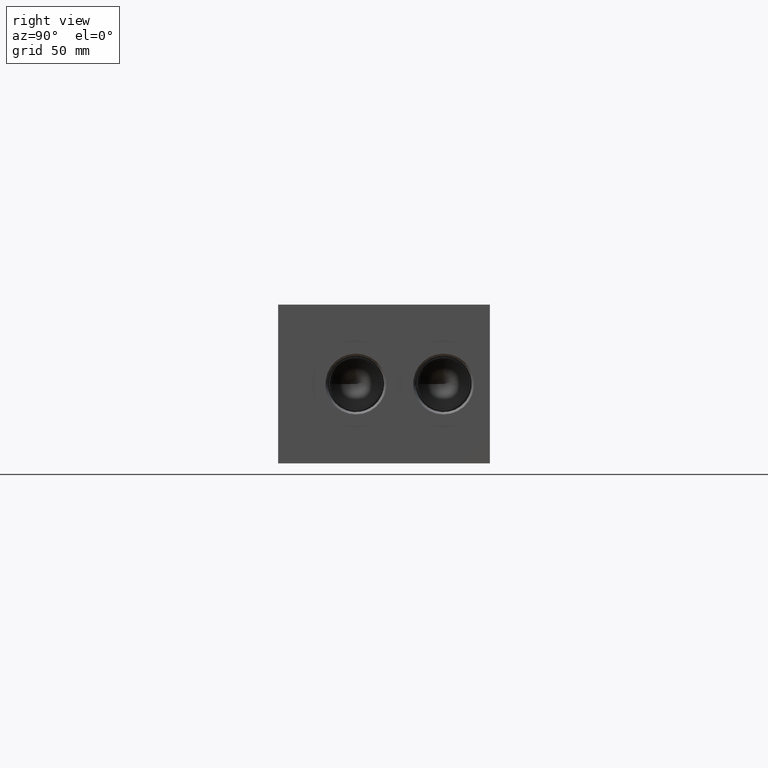
[diagram: clean part render]
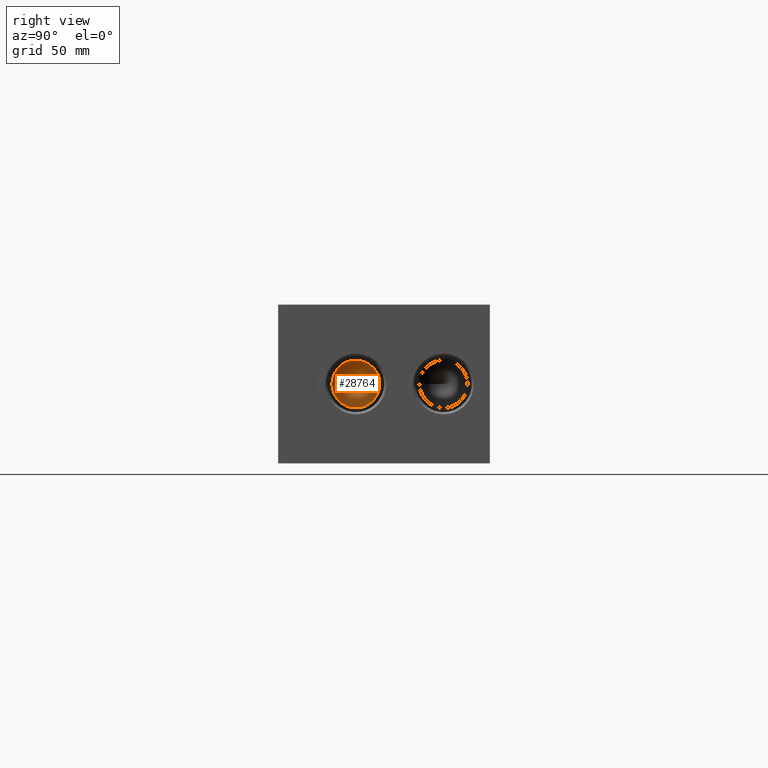
[diagram: same view with one face highlighted and labeled with its STEP entity id]
A machine part, right view. The second image highlights one B-rep face of the part: STEP entity #28764.
In plain terms, the highlighted conical surface has half-angle 60 deg.
Its self-contained STEP definition (entity closure, byte-faithful):
#257=CONICAL_SURFACE('',#30160,5.7531,1.0471975511966);
#679=CIRCLE('',#30161,11.5062);
#680=CIRCLE('',#30162,11.5062);
#3309=FACE_OUTER_BOUND('',#4975,.T.);
#4975=EDGE_LOOP('',(#24522,#24523,#24524,#24525));
#7548=LINE('',#49703,#9956);
#9956=VECTOR('',#35249,5.7531);
#13413=VERTEX_POINT('',#49699);
#13414=VERTEX_POINT('',#49700);
#13415=VERTEX_POINT('',#49702);
#17268=EDGE_CURVE('',#13413,#13414,#679,.T.);
#17269=EDGE_CURVE('',#13414,#13415,#7548,.T.);
#17270=EDGE_CURVE('',#13414,#13413,#680,.T.);
#24522=ORIENTED_EDGE('',*,*,#17268,.T.);
#24523=ORIENTED_EDGE('',*,*,#17269,.T.);
#24524=ORIENTED_EDGE('',*,*,#17269,.F.);
#24525=ORIENTED_EDGE('',*,*,#17270,.T.);
#28764=ADVANCED_FACE('',(#3309),#257,.F.);
#30160=AXIS2_PLACEMENT_3D('',#49698,#35245,#35246);
#30161=AXIS2_PLACEMENT_3D('',#49701,#35247,#35248);
#30162=AXIS2_PLACEMENT_3D('',#49704,#35250,#35251);
#35245=DIRECTION('center_axis',(1.,0.,0.));
#35246=DIRECTION('ref_axis',(0.,1.,0.));
#35247=DIRECTION('center_axis',(1.,0.,0.));
#35248=DIRECTION('ref_axis',(0.,1.,0.));
#35249=DIRECTION('',(-0.5,0.866025403784439,1.06057523872491E-16));
#35250=DIRECTION('center_axis',(1.,0.,0.));
#35251=DIRECTION('ref_axis',(0.,1.,0.));
#49698=CARTESIAN_POINT('Origin',(292.836456166325,37.3126,38.1));
#49699=CARTESIAN_POINT('',(296.15801,48.8188,38.1));
#49700=CARTESIAN_POINT('',(296.15801,25.8064,38.1));
#49701=CARTESIAN_POINT('Origin',(296.15801,37.3126,38.1));
#49702=CARTESIAN_POINT('',(289.51490233265,37.3126,38.1));
#49703=CARTESIAN_POINT('',(292.836456166325,31.5595,38.1));
#49704=CARTESIAN_POINT('Origin',(296.15801,37.3126,38.1));